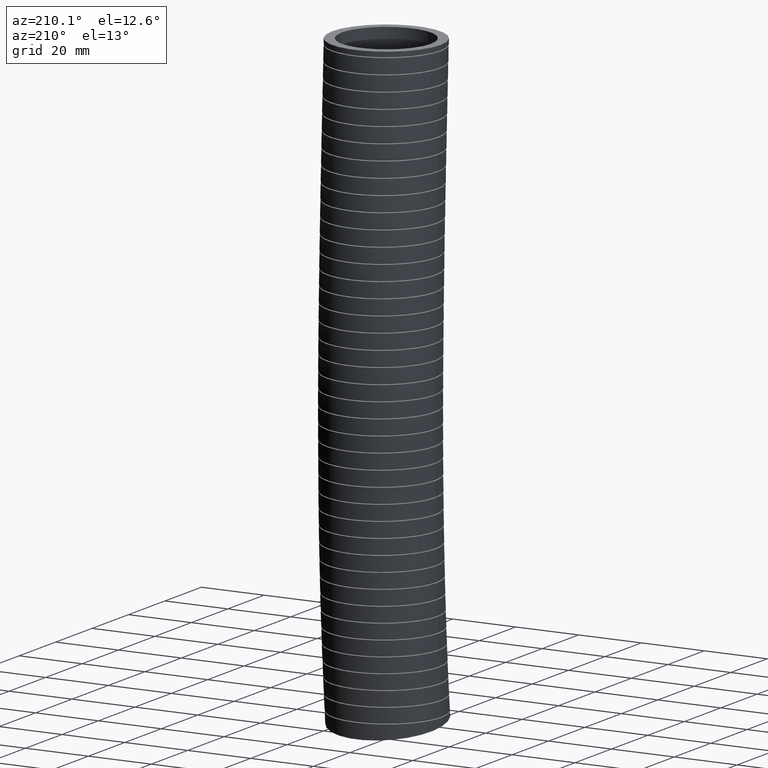
[diagram: clean part render]
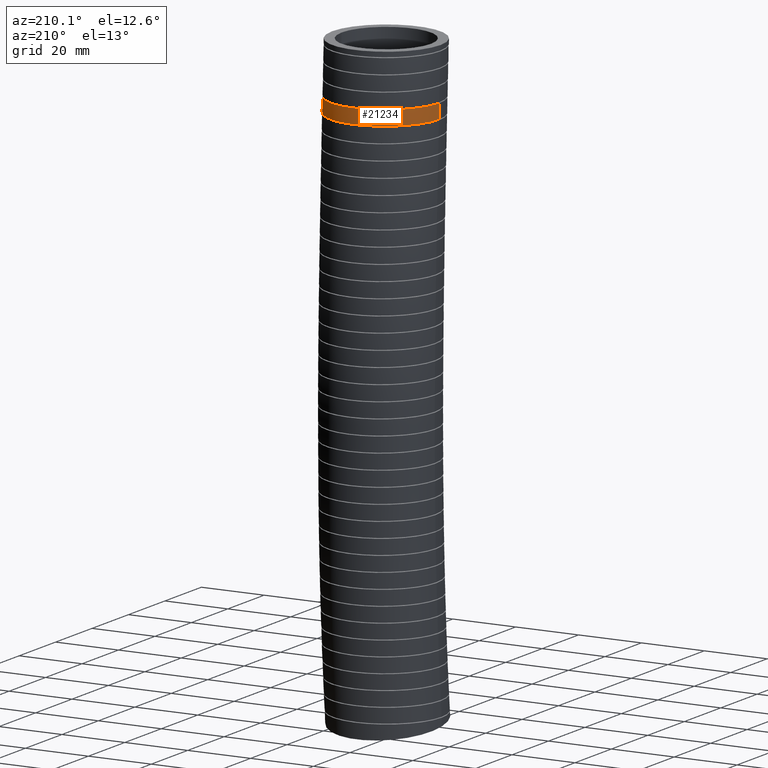
[diagram: same view with one face highlighted and labeled with its STEP entity id]
A machine part, auxiliary view. The second image highlights one B-rep face of the part: STEP entity #21234.
In plain terms, the highlighted face is a freeform B-spline surface patch.
Its self-contained STEP definition (entity closure, byte-faithful):
#18563 = CARTESIAN_POINT ( 'NONE',  ( -0.6800000000000000500, -1.377559051196987500, -7.386466342222807800 ) ) ;
#18564 = CARTESIAN_POINT ( 'NONE',  ( -0.6800000000000000500, -1.360997193634168900, -7.204345745797499300 ) ) ;
#18565 = CARTESIAN_POINT ( 'NONE',  ( -0.6800000000000000500, -1.264559801960247100, -6.143882858543539900 ) ) ;
#19029 = CARTESIAN_POINT ( 'NONE',  ( -0.5904849513078157500, 0.3761918589997199600, -0.8192697212118093000 ) ) ;
#19030 = CARTESIAN_POINT ( 'NONE',  ( -0.5532375638036672900, 0.4320206582917536800, -0.8192697212118091900 ) ) ;
#19031 = CARTESIAN_POINT ( 'NONE',  ( -0.5398417017808850900, 0.4500897604705956800, -0.8192697212118093000 ) ) ;
#19032 = CARTESIAN_POINT ( 'NONE',  ( -0.5116279551723561500, 0.4844843448887385900, -0.8192697212118093000 ) ) ;
#19033 = CARTESIAN_POINT ( 'NONE',  ( -0.4818629121424491400, 0.5173369207062814600, -0.8192697212118100800 ) ) ;
#19034 = CARTESIAN_POINT ( 'NONE',  ( -0.4490373415053658400, 0.5471472927079709100, -0.8192697212118093000 ) ) ;
#19035 = CARTESIAN_POINT ( 'NONE',  ( -0.4146582154965133300, 0.5754134106833100900, -0.8192697212118091900 ) ) ;
#19036 = CARTESIAN_POINT ( 'NONE',  ( -0.3965855978988972500, 0.5888415434402395300, -0.8192697212118094100 ) ) ;
#19037 = CARTESIAN_POINT ( 'NONE',  ( -0.3408365559310717100, 0.6261244353904332800, -0.8192697212118091900 ) ) ;
#19038 = CARTESIAN_POINT ( 'NONE',  ( -0.3017484154350754700, 0.6470112085418867600, -0.8192697212118097400 ) ) ;
#19039 = CARTESIAN_POINT ( 'NONE',  ( -0.2403009917889134300, 0.6725289410896812000, -0.8192697212118097400 ) ) ;
#19040 = CARTESIAN_POINT ( 'NONE',  ( -0.2193459587888899300, 0.6800591844915268000, -0.8192697212118094100 ) ) ;
#19041 = CARTESIAN_POINT ( 'NONE',  ( -0.1764604500510915100, 0.6931057241878839600, -0.8192697212118095200 ) ) ;
#19042 = CARTESIAN_POINT ( 'NONE',  ( -0.1547181776055593600, 0.6985559576574088500, -0.8192697212118093000 ) ) ;
#19043 = CARTESIAN_POINT ( 'NONE',  ( -0.08934888043725329500, 0.7115865988412100100, -0.8192697212118094100 ) ) ;
#19044 = CARTESIAN_POINT ( 'NONE',  ( -0.04527825704631142200, 0.7159722992071457800, -0.8192697212118089700 ) ) ;
#19045 = CARTESIAN_POINT ( 'NONE',  ( 0.02157075941990870000, 0.7160423218975564600, -0.8192697212118089700 ) ) ;
#19046 = CARTESIAN_POINT ( 'NONE',  ( 0.04409315648240497200, 0.7149551747230781200, -0.8192697212118089700 ) ) ;
#19047 = CARTESIAN_POINT ( 'NONE',  ( 0.08851807740176702300, 0.7106024125429738500, -0.8192697212118089700 ) ) ;
#19048 = CARTESIAN_POINT ( 'NONE',  ( 0.1104854246994743000, 0.7073486424906121300, -0.8192697212118101900 ) ) ;
#19049 = CARTESIAN_POINT ( 'NONE',  ( 0.1756686435058720200, 0.6944277628789420300, -0.8192697212118098500 ) ) ;
#19050 = CARTESIAN_POINT ( 'NONE',  ( 0.2181727597501340000, 0.6816321503066337100, -0.8192697212118089700 ) ) ;
#19051 = CARTESIAN_POINT ( 'NONE',  ( 0.3011977818397930100, 0.6473237719236181200, -0.8192697212118088500 ) ) ;
#19052 = CARTESIAN_POINT ( 'NONE',  ( 0.3403455171609912600, 0.6263767645308487800, -0.8192697212118094100 ) ) ;
#19053 = CARTESIAN_POINT ( 'NONE',  ( 0.3956334582927569800, 0.5895151057510207300, -0.8192697212118091900 ) ) ;
#19054 = CARTESIAN_POINT ( 'NONE',  ( 0.4134881185698045000, 0.5763135031339456900, -0.8192697212118091900 ) ) ;
#19055 = CARTESIAN_POINT ( 'NONE',  ( 0.4480221197142388900, 0.5480401409442851000, -0.8192697212118088500 ) ) ;
#19056 = CARTESIAN_POINT ( 'NONE',  ( 0.4647433141635751700, 0.5329105871745962700, -0.8192697212118089700 ) ) ;
#19057 = CARTESIAN_POINT ( 'NONE',  ( 0.5120487545133257700, 0.4856657725888812200, -0.8192697212118091900 ) ) ;
#19058 = CARTESIAN_POINT ( 'NONE',  ( 0.5401679460685383500, 0.4514485178346285300, -0.8192697212118089700 ) ) ;
#19059 = CARTESIAN_POINT ( 'NONE',  ( 0.5772679106101364900, 0.3960796433659526400, -0.8192697212118089700 ) ) ;
#19060 = CARTESIAN_POINT ( 'NONE',  ( 0.5888168450100630400, 0.3768789748251845700, -0.8192697212118089700 ) ) ;
#19061 = CARTESIAN_POINT ( 'NONE',  ( 0.6099880426977765100, 0.3373585302180877600, -0.8192697212118089700 ) ) ;
#19062 = CARTESIAN_POINT ( 'NONE',  ( 0.6195165095451383700, 0.3172303567650441300, -0.8192697212118097400 ) ) ;
#19063 = CARTESIAN_POINT ( 'NONE',  ( 0.6450301516970702300, 0.2557766633656738400, -0.8192697212118095200 ) ) ;
#19064 = CARTESIAN_POINT ( 'NONE',  ( 0.6579726193464815500, 0.2133920819369563800, -0.8192697212118089700 ) ) ;
#19065 = CARTESIAN_POINT ( 'NONE',  ( 0.6711433143903397000, 0.1476422348012231800, -0.8192697212118087400 ) ) ;
#19066 = CARTESIAN_POINT ( 'NONE',  ( 0.6744722331848505000, 0.1253660552162576000, -0.8192697212118095200 ) ) ;
#19067 = CARTESIAN_POINT ( 'NONE',  ( 0.6788900256699923500, 0.08081297299517704900, -0.8192697212118095200 ) ) ;
#19068 = CARTESIAN_POINT ( 'NONE',  ( 0.6800000000000001600, 0.05844486429216202300, -0.8192697212118390500 ) ) ;
#19069 = CARTESIAN_POINT ( 'NONE',  ( 0.6799999999999999400, 0.03598426705475181500, -0.8192697212118389400 ) ) ;
#19071 = B_SPLINE_CURVE_WITH_KNOTS ( 'NONE', 3,
 ( #19069, #19068, #19067, #19066, #19065, #19064, #19063, #19062, #19061, #19060, #19059, #19058, #19057, #19056, #19055, #19054, #19053, #19052, #19051, #19050, #19049, #19048, #19047, #19046, #19045, #19044, #19043, #19042, #19041, #19040, #19039, #19038, #19037, #19036, #19035, #19034, #19033, #19032, #19031, #19030, #19029, #19102, #19101, #19100, #19099, #19098, #19097, #19096, #19095 ),
 .UNSPECIFIED., .F., .F.,
 ( 4, 2, 2, 2, 2, 2, 2, 2, 2, 2, 2, 2, 2, 2, 2, 2, 2, 2, 1, 2, 2, 2, 2, 2, 4 ),
 ( 0.0000000000000000000, 0.001705586769284643200, 0.003411173538569286400, 0.006822347077138571900, 0.008527933846423212500, 0.01023352061570785200, 0.01364469415427713300, 0.01535028092356177700, 0.01705586769284642100, 0.02046704123141571100, 0.02387821476998500100, 0.02558380153926965000, 0.02728938830855429800, 0.03070056184712358800, 0.03240614861640823300, 0.03411173538569287800, 0.03752290892426216100, 0.03922849569354681200, 0.04093408246283145700, 0.04263966923211610900, 0.04434525600140076100, 0.04775642953997005800, 0.04946201630925471000, 0.05116760307853936200, 0.05457877661710864400 ),
 .UNSPECIFIED. ) ;
#19093 = FACE_OUTER_BOUND ( 'NONE', #21237, .T. ) ;
#19095 = CARTESIAN_POINT ( 'NONE',  ( -0.6800000000000001600, 0.03598426705474937200, -0.8192697212118095200 ) ) ;
#19096 = CARTESIAN_POINT ( 'NONE',  ( -0.6799999999999998300, 0.08052592784456730200, -0.8192697212118089700 ) ) ;
#19097 = CARTESIAN_POINT ( 'NONE',  ( -0.6756658469484685400, 0.1245990384415619200, -0.8192697212118095200 ) ) ;
#19098 = CARTESIAN_POINT ( 'NONE',  ( -0.6627009638964842500, 0.1900099412694147800, -0.8192697212118094100 ) ) ;
#19099 = CARTESIAN_POINT ( 'NONE',  ( -0.6572644105125613500, 0.2117915986094755200, -0.8192697212118095200 ) ) ;
#19100 = CARTESIAN_POINT ( 'NONE',  ( -0.6442733653272865200, 0.2546582249122878400, -0.8192697212118094100 ) ) ;
#19101 = CARTESIAN_POINT ( 'NONE',  ( -0.6367703835530166300, 0.2756110237593514800, -0.8192697212118097400 ) ) ;
#19102 = CARTESIAN_POINT ( 'NONE',  ( -0.6113286207606700700, 0.3370705936564204500, -0.8192697212118099600 ) ) ;
#19103 = CARTESIAN_POINT ( 'NONE',  ( -0.6799999999999998300, -1.194865599480906100, -3.721164621865159700 ) ) ;
#19104 = CARTESIAN_POINT ( 'NONE',  ( -0.6800000000000000500, -1.297703424955836600, -1.403800845789877400 ) ) ;
#19105 = CARTESIAN_POINT ( 'NONE',  ( -0.6800000000000000500, -1.360000000000000100, 0.0000000000000000000 ) ) ;
#19106 = CARTESIAN_POINT ( 'NONE',  ( 0.6799999999999998300, -1.377559051196987500, -7.386466342222807800 ) ) ;
#19107 = CARTESIAN_POINT ( 'NONE',  ( 0.6799999999999998300, -1.360997193634168900, -7.204345745797499300 ) ) ;
#19108 = CARTESIAN_POINT ( 'NONE',  ( 0.6800000000000000500, -1.264559801960247100, -6.143882858543539900 ) ) ;
#19109 = CARTESIAN_POINT ( 'NONE',  ( 0.6799999999999998300, -1.194865599480906100, -3.721164621865159700 ) ) ;
#19110 = CARTESIAN_POINT ( 'NONE',  ( 0.6800000000000000500, -1.297703424955836600, -1.403800845789877400 ) ) ;
#19111 = CARTESIAN_POINT ( 'NONE',  ( 0.6800000000000000500, -1.360000000000000100, 0.0000000000000000000 ) ) ;
#19112 = CARTESIAN_POINT ( 'NONE',  ( 0.6799999999999998300, -0.03000000000000002700, -7.570000000000000300 ) ) ;
#19113 = CARTESIAN_POINT ( 'NONE',  ( 0.6799999999999998300, -0.01268304244353373300, -7.380027536167250300 ) ) ;
#19114 = CARTESIAN_POINT ( 'NONE',  ( 0.6799999999999998300, 0.08815119140610085100, -6.273844317744462300 ) ) ;
#19115 = CARTESIAN_POINT ( 'NONE',  ( 0.6799999999999998300, 0.1669887239008314700, -3.753425867331408000 ) ) ;
#19116 = CARTESIAN_POINT ( 'NONE',  ( 0.6799999999999999400, 0.06299611430032937800, -1.415971326882179200 ) ) ;
#19117 = CARTESIAN_POINT ( 'NONE',  ( 0.6799999999999999400, 0.0000000000000000000, 0.0000000000000000000 ) ) ;
#19122 =( BOUNDED_SURFACE ( )  B_SPLINE_SURFACE ( 3, 3, ( 
 ( #19117, #19116, #19115, #19114, #19113, #19112 ),
 ( #19111, #19110, #19109, #19108, #19107, #19106 ),
 ( #19105, #19104, #19103, #18565, #18564, #18563 ),
 ( #19149, #19148, #19147, #19146, #19145, #19144 ),
 ( #19143, #19142, #19141, #19140, #19139, #19138 ),
 ( #19137, #19136, #19135, #19134, #19133, #19132 ),
 ( #19131, #19130, #19129, #19128, #19127, #19126 ) ),
 .UNSPECIFIED., .F., .F., .F. ) 
 B_SPLINE_SURFACE_WITH_KNOTS ( ( 4, 3, 4 ),
 ( 4, 1, 1, 4 ),
 ( 0.0000000000000000000, 0.5000000000000000000, 1.000000000000000000 ),
 ( 0.0000000000000000000, 0.5599999999999998300, 0.9244357691435686200, 1.000000000000000000 ),
 .UNSPECIFIED. ) 
 GEOMETRIC_REPRESENTATION_ITEM ( )  RATIONAL_B_SPLINE_SURFACE ( (
 ( 1.000000000000000000, 1.000000000000000000, 0.9999999999999998900, 1.000000000000000000, 1.000000000000000000, 1.000000000000000000),
 ( 0.3333333333333333100, 0.3333333333333333100, 0.3333333333333333100, 0.3333333333333333100, 0.3333333333333333100, 0.3333333333333333100),
 ( 0.3333333333333333100, 0.3333333333333333100, 0.3333333333333333100, 0.3333333333333333100, 0.3333333333333333100, 0.3333333333333333100),
 ( 1.000000000000000000, 1.000000000000000000, 0.9999999999999998900, 1.000000000000000000, 1.000000000000000000, 1.000000000000000000),
 ( 0.3333333333333333100, 0.3333333333333333100, 0.3333333333333333100, 0.3333333333333333100, 0.3333333333333333100, 0.3333333333333333100),
 ( 0.3333333333333333100, 0.3333333333333333100, 0.3333333333333333100, 0.3333333333333333100, 0.3333333333333333100, 0.3333333333333333100),
 ( 1.000000000000000000, 1.000000000000000000, 0.9999999999999998900, 1.000000000000000000, 1.000000000000000000, 1.000000000000000000) ) ) 
 REPRESENTATION_ITEM ( '' )  SURFACE ( )  );
#19126 = CARTESIAN_POINT ( 'NONE',  ( 0.6799999999999998300, -0.03000000000000002700, -7.570000000000000300 ) ) ;
#19127 = CARTESIAN_POINT ( 'NONE',  ( 0.6799999999999998300, -0.01268304244353373300, -7.380027536167250300 ) ) ;
#19128 = CARTESIAN_POINT ( 'NONE',  ( 0.6799999999999998300, 0.08815119140610085100, -6.273844317744462300 ) ) ;
#19129 = CARTESIAN_POINT ( 'NONE',  ( 0.6799999999999998300, 0.1669887239008314700, -3.753425867331408000 ) ) ;
#19130 = CARTESIAN_POINT ( 'NONE',  ( 0.6799999999999999400, 0.06299611430032937800, -1.415971326882179200 ) ) ;
#19131 = CARTESIAN_POINT ( 'NONE',  ( 0.6799999999999999400, 0.0000000000000000000, 0.0000000000000000000 ) ) ;
#19132 = CARTESIAN_POINT ( 'NONE',  ( 0.6799999999999998300, 1.317559051196987700, -7.753533657777190100 ) ) ;
#19133 = CARTESIAN_POINT ( 'NONE',  ( 0.6799999999999998300, 1.335631108747101300, -7.555709326537000300 ) ) ;
#19134 = CARTESIAN_POINT ( 'NONE',  ( 0.6800000000000000500, 1.440862184772448300, -6.403805776945382000 ) ) ;
#19135 = CARTESIAN_POINT ( 'NONE',  ( 0.6799999999999998300, 1.528843047282568500, -3.785687112797655500 ) ) ;
#19136 = CARTESIAN_POINT ( 'NONE',  ( 0.6800000000000000500, 1.423695653556495700, -1.428141807974481600 ) ) ;
#19137 = CARTESIAN_POINT ( 'NONE',  ( 0.6800000000000000500, 1.360000000000000100, 0.0000000000000000000 ) ) ;
#19138 = CARTESIAN_POINT ( 'NONE',  ( -0.6799999999999997200, 1.317559051196987700, -7.753533657777190100 ) ) ;
#19139 = CARTESIAN_POINT ( 'NONE',  ( -0.6799999999999998300, 1.335631108747101300, -7.555709326537000300 ) ) ;
#19140 = CARTESIAN_POINT ( 'NONE',  ( -0.6799999999999998300, 1.440862184772448300, -6.403805776945382000 ) ) ;
#19141 = CARTESIAN_POINT ( 'NONE',  ( -0.6799999999999993800, 1.528843047282568500, -3.785687112797655500 ) ) ;
#19142 = CARTESIAN_POINT ( 'NONE',  ( -0.6799999999999997200, 1.423695653556495700, -1.428141807974481600 ) ) ;
#19143 = CARTESIAN_POINT ( 'NONE',  ( -0.6799999999999998300, 1.360000000000000100, 0.0000000000000000000 ) ) ;
#19144 = CARTESIAN_POINT ( 'NONE',  ( -0.6799999999999998300, -0.02999999999999994300, -7.570000000000000300 ) ) ;
#19145 = CARTESIAN_POINT ( 'NONE',  ( -0.6799999999999998300, -0.01268304244353365600, -7.380027536167250300 ) ) ;
#19146 = CARTESIAN_POINT ( 'NONE',  ( -0.6799999999999998300, 0.08815119140610093400, -6.273844317744462300 ) ) ;
#19147 = CARTESIAN_POINT ( 'NONE',  ( -0.6799999999999998300, 0.1669887239008315800, -3.753425867331408000 ) ) ;
#19148 = CARTESIAN_POINT ( 'NONE',  ( -0.6799999999999999400, 0.06299611430032946200, -1.415971326882179200 ) ) ;
#19149 = CARTESIAN_POINT ( 'NONE',  ( -0.6799999999999999400, 8.327598234202001900E-017, 0.0000000000000000000 ) ) ;
#19197 = CARTESIAN_POINT ( 'NONE',  ( -0.1547329555396416400, 0.6907895624316626700, -0.6394462256569871700 ) ) ;
#19198 = CARTESIAN_POINT ( 'NONE',  ( -0.1762930381850650900, 0.6853876627531424500, -0.6394462256569871700 ) ) ;
#19199 = CARTESIAN_POINT ( 'NONE',  ( -0.2190642809178262000, 0.6723920994288628000, -0.6394462256569871700 ) ) ;
#19200 = CARTESIAN_POINT ( 'NONE',  ( -0.2402606398770959200, 0.6647861362719571500, -0.6394462256569875000 ) ) ;
#19201 = CARTESIAN_POINT ( 'NONE',  ( -0.3019217825431378400, 0.6391762674444521100, -0.6394462256569872800 ) ) ;
#19202 = CARTESIAN_POINT ( 'NONE',  ( -0.3409611881619574700, 0.6182744567992141100, -0.6394462256569875000 ) ) ;
#19203 = CARTESIAN_POINT ( 'NONE',  ( -0.3964251918887745600, 0.5811917224560109200, -0.6394462256569877200 ) ) ;
#19204 = CARTESIAN_POINT ( 'NONE',  ( -0.4144828943400366600, 0.5677930735870964100, -0.6394462256569875000 ) ) ;
#19205 = CARTESIAN_POINT ( 'NONE',  ( -0.4490538104614978900, 0.5393782184666953100, -0.6394462256569877200 ) ) ;
#19206 = CARTESIAN_POINT ( 'NONE',  ( -0.4655158340656681000, 0.5244216974328951300, -0.6394462256569877200 ) ) ;
#19207 = CARTESIAN_POINT ( 'NONE',  ( -0.5125004673228077400, 0.4773675024088785400, -0.6394462256569875000 ) ) ;
#19208 = CARTESIAN_POINT ( 'NONE',  ( -0.5406446725295175300, 0.4431061501391374000, -0.6394462256569880500 ) ) ;
#19209 = CARTESIAN_POINT ( 'NONE',  ( -0.5779457140814885400, 0.3872426135949197900, -0.6394462256569878300 ) ) ;
#19210 = CARTESIAN_POINT ( 'NONE',  ( -0.5894744286256757800, 0.3679694569926715800, -0.6394462256569872800 ) ) ;
#19211 = CARTESIAN_POINT ( 'NONE',  ( -0.6104034338532825500, 0.3287438362548697500, -0.6394462256569871700 ) ) ;
#19212 = CARTESIAN_POINT ( 'NONE',  ( -0.6293219584787895800, 0.2886663502958383100, -0.6394462256569866100 ) ) ;
#19213 = CARTESIAN_POINT ( 'NONE',  ( -0.6442671843227113500, 0.2469053290457677000, -0.6394462256569883900 ) ) ;
#19214 = CARTESIAN_POINT ( 'NONE',  ( -0.6571919685197549200, 0.2042882219579615600, -0.6394462256569880500 ) ) ;
#19215 = CARTESIAN_POINT ( 'NONE',  ( -0.6626638572573446700, 0.1824277515493738200, -0.6394462256569879400 ) ) ;
#19216 = CARTESIAN_POINT ( 'NONE',  ( -0.6756990872457254700, 0.1166979604888046500, -0.6394462256569880500 ) ) ;
#19217 = CARTESIAN_POINT ( 'NONE',  ( -0.6799999999999998300, 0.07259940774041331900, -0.6394462256569875000 ) ) ;
#19218 = CARTESIAN_POINT ( 'NONE',  ( -0.6800000000000001600, 0.02822777126929970600, -0.6394462256569875000 ) ) ;
#19219 = B_SPLINE_CURVE_WITH_KNOTS ( 'NONE', 3,
 ( #19218, #19217, #19216, #19215, #19214, #19213, #19212, #19211, #19210, #19209, #19208, #19207, #19206, #19205, #19204, #19203, #19202, #19201, #19200, #19199, #19198, #19197, #19278, #19277, #19276, #19275, #19274, #19273, #19272, #19271, #19270, #19269, #19268, #19267, #19266, #19265, #19263, #19262, #19261, #19260, #19259, #19258, #19257, #19256, #19255, #19254, #19253, #19252, #19251, #19250, #19249 ),
 .UNSPECIFIED., .F., .F.,
 ( 4, 2, 2, 1, 2, 2, 2, 2, 2, 2, 2, 2, 2, 2, 2, 2, 2, 2, 2, 2, 2, 2, 2, 2, 2, 4 ),
 ( 0.05400136640780537500, 0.05737568990105984500, 0.05906285164768708400, 0.06075001339431432300, 0.06243717514094156200, 0.06412433688756880000, 0.06749866038082327800, 0.06918582212745051600, 0.07087298387407775500, 0.07424730736733223300, 0.07593446911395947100, 0.07762163086058671000, 0.08099595435384117400, 0.08268311610046841200, 0.08437027784709565100, 0.08605743959372289000, 0.08774460134035011500, 0.09111892483360459200, 0.09280608658023183100, 0.09449324832685906900, 0.09786757182011354700, 0.09955473356674078600, 0.1012418953133680200, 0.1029290570599952800, 0.1046162188066225000, 0.1079905422998769900 ),
 .UNSPECIFIED. ) ;
#19249 = CARTESIAN_POINT ( 'NONE',  ( 0.6799999999999999400, 0.02822777126930134000, -0.6394462256570073700 ) ) ;
#19250 = CARTESIAN_POINT ( 'NONE',  ( 0.6800000000000001600, 0.07314779415834572800, -0.6394462256570073700 ) ) ;
#19251 = CARTESIAN_POINT ( 'NONE',  ( 0.6755925759296613800, 0.1176021259641203800, -0.6394462256569877200 ) ) ;
#19252 = CARTESIAN_POINT ( 'NONE',  ( 0.6623960521878991000, 0.1835878003407387400, -0.6394462256569872800 ) ) ;
#19253 = CARTESIAN_POINT ( 'NONE',  ( 0.6569163332420577800, 0.2053078755538863300, -0.6394462256569871700 ) ) ;
#19254 = CARTESIAN_POINT ( 'NONE',  ( 0.6439568570099952800, 0.2478126413780056500, -0.6394462256569872800 ) ) ;
#19255 = CARTESIAN_POINT ( 'NONE',  ( 0.6364645475388566200, 0.2686615077003622900, -0.6394462256569875000 ) ) ;
#19256 = CARTESIAN_POINT ( 'NONE',  ( 0.6194751192671291700, 0.3095603101565603800, -0.6394462256569872800 ) ) ;
#19257 = CARTESIAN_POINT ( 'NONE',  ( 0.6099780419682648800, 0.3296102628291213100, -0.6394462256569872800 ) ) ;
#19258 = CARTESIAN_POINT ( 'NONE',  ( 0.5889413438968227300, 0.3688962006719290200, -0.6394462256569873900 ) ) ;
#19259 = CARTESIAN_POINT ( 'NONE',  ( 0.5773314832387118600, 0.3882251542220560000, -0.6394462256569875000 ) ) ;
#19260 = CARTESIAN_POINT ( 'NONE',  ( 0.5400612127970755300, 0.4438499873475890100, -0.6394462256569877200 ) ) ;
#19261 = CARTESIAN_POINT ( 'NONE',  ( 0.5119056489547663100, 0.4780512426674737900, -0.6394462256569879400 ) ) ;
#19262 = CARTESIAN_POINT ( 'NONE',  ( 0.4647913921343612700, 0.5251017424228855400, -0.6394462256569877200 ) ) ;
#19263 = CARTESIAN_POINT ( 'NONE',  ( 0.4482674098094867600, 0.5400716745551670300, -0.6394462256569878300 ) ) ;
#19265 = CARTESIAN_POINT ( 'NONE',  ( 0.4135221855944804500, 0.5685331875940986500, -0.6394462256569877200 ) ) ;
#19266 = CARTESIAN_POINT ( 'NONE',  ( 0.3955840307960930000, 0.5817921451260973400, -0.6394462256569877200 ) ) ;
#19267 = CARTESIAN_POINT ( 'NONE',  ( 0.3401718145200864400, 0.6187235612109689400, -0.6394462256569875000 ) ) ;
#19268 = CARTESIAN_POINT ( 'NONE',  ( 0.3010971905911689100, 0.6395916667944148100, -0.6394462256569878300 ) ) ;
#19269 = CARTESIAN_POINT ( 'NONE',  ( 0.2392344065991259800, 0.6651746172667557500, -0.6394462256569880500 ) ) ;
#19270 = CARTESIAN_POINT ( 'NONE',  ( 0.2179960619416949100, 0.6727521581552325900, -0.6394462256569875000 ) ) ;
#19271 = CARTESIAN_POINT ( 'NONE',  ( 0.1753295804418632300, 0.6856431745547991700, -0.6394462256569873900 ) ) ;
#19272 = CARTESIAN_POINT ( 'NONE',  ( 0.1537999386332927200, 0.6910063157387230600, -0.6394462256569875000 ) ) ;
#19273 = CARTESIAN_POINT ( 'NONE',  ( 0.1103552909186959900, 0.6996088550319016200, -0.6394462256569877200 ) ) ;
#19274 = CARTESIAN_POINT ( 'NONE',  ( 0.08844027624212369400, 0.7028482048066319000, -0.6394462256569878300 ) ) ;
#19275 = CARTESIAN_POINT ( 'NONE',  ( 0.04422112125650092700, 0.7071824314469298300, -0.6394462256569877200 ) ) ;
#19276 = CARTESIAN_POINT ( 'NONE',  ( 0.02184349443325659900, 0.7082769812393258100, -0.6394462256569875000 ) ) ;
#19277 = CARTESIAN_POINT ( 'NONE',  ( -0.04540762393812235200, 0.7082202558185304300, -0.6394462256569873900 ) ) ;
#19278 = CARTESIAN_POINT ( 'NONE',  ( -0.08954275520292359600, 0.7037919853521906700, -0.6394462256569871700 ) ) ;
#19475 = CARTESIAN_POINT ( 'NONE',  ( 0.6799999999999999400, 0.03598426705475181500, -0.8192697212118389400 ) ) ;
#19487 = CARTESIAN_POINT ( 'NONE',  ( -0.6800000000000001600, 0.03598426705474937200, -0.8192697212118095200 ) ) ;
#19488 = CARTESIAN_POINT ( 'NONE',  ( -0.6799999999999999400, 0.03341956247957128500, -0.7593294365367198000 ) ) ;
#19489 = CARTESIAN_POINT ( 'NONE',  ( -0.6799999999999999400, 0.03083242235157241900, -0.6993882018420642900 ) ) ;
#19490 = CARTESIAN_POINT ( 'NONE',  ( -0.6800000000000001600, 0.02822777126929970600, -0.6394462256569875000 ) ) ;
#19492 = B_SPLINE_CURVE_WITH_KNOTS ( 'NONE', 3,
 ( #19490, #19489, #19488, #19487 ),
 .UNSPECIFIED., .F., .F.,
 ( 4, 4 ),
 ( 0.08429905552425613600, 0.1080064445961091800 ),
 .UNSPECIFIED. ) ;
#19512 = B_SPLINE_CURVE_WITH_KNOTS ( 'NONE', 3,
 ( #19598, #19597, #19596, #19595 ),
 .UNSPECIFIED., .F., .F.,
 ( 4, 4 ),
 ( 0.08429905552425875900, 0.1080064445961130500 ),
 .UNSPECIFIED. ) ;
#19594 = CARTESIAN_POINT ( 'NONE',  ( -0.6800000000000001600, 0.02822777126929970600, -0.6394462256569875000 ) ) ;
#19595 = CARTESIAN_POINT ( 'NONE',  ( 0.6799999999999999400, 0.03598426705475181500, -0.8192697212118389400 ) ) ;
#19596 = CARTESIAN_POINT ( 'NONE',  ( 0.6799999999999998300, 0.03341956247957231200, -0.7593294365367454500 ) ) ;
#19597 = CARTESIAN_POINT ( 'NONE',  ( 0.6799999999999998300, 0.03083242235157332100, -0.6993882018420869400 ) ) ;
#19598 = CARTESIAN_POINT ( 'NONE',  ( 0.6799999999999999400, 0.02822777126930134000, -0.6394462256570073700 ) ) ;
#19737 = CARTESIAN_POINT ( 'NONE',  ( 0.6799999999999999400, 0.02822777126930134000, -0.6394462256570073700 ) ) ;
#19899 = CARTESIAN_POINT ( 'NONE',  ( -0.6800000000000001600, 0.03598426705474937200, -0.8192697212118095200 ) ) ;
#21223 = EDGE_CURVE ( 'NONE', #21264, #21303, #19071, .T. ) ;
#21224 = ORIENTED_EDGE ( 'NONE', *, *, #21240, .T. ) ;
#21226 = ORIENTED_EDGE ( 'NONE', *, *, #21265, .F. ) ;
#21228 = ORIENTED_EDGE ( 'NONE', *, *, #21269, .T. ) ;
#21229 = ORIENTED_EDGE ( 'NONE', *, *, #21223, .T. ) ;
#21234 = ADVANCED_FACE ( 'NONE', ( #19093 ), #19122, .T. ) ;
#21237 = EDGE_LOOP ( 'NONE', ( #21226, #21224, #21228, #21229 ) ) ;
#21240 = EDGE_CURVE ( 'NONE', #21271, #21282, #19219, .T. ) ;
#21264 = VERTEX_POINT ( 'NONE', #19475 ) ;
#21265 = EDGE_CURVE ( 'NONE', #21271, #21303, #19492, .T. ) ;
#21269 = EDGE_CURVE ( 'NONE', #21282, #21264, #19512, .T. ) ;
#21271 = VERTEX_POINT ( 'NONE', #19594 ) ;
#21282 = VERTEX_POINT ( 'NONE', #19737 ) ;
#21303 = VERTEX_POINT ( 'NONE', #19899 ) ;